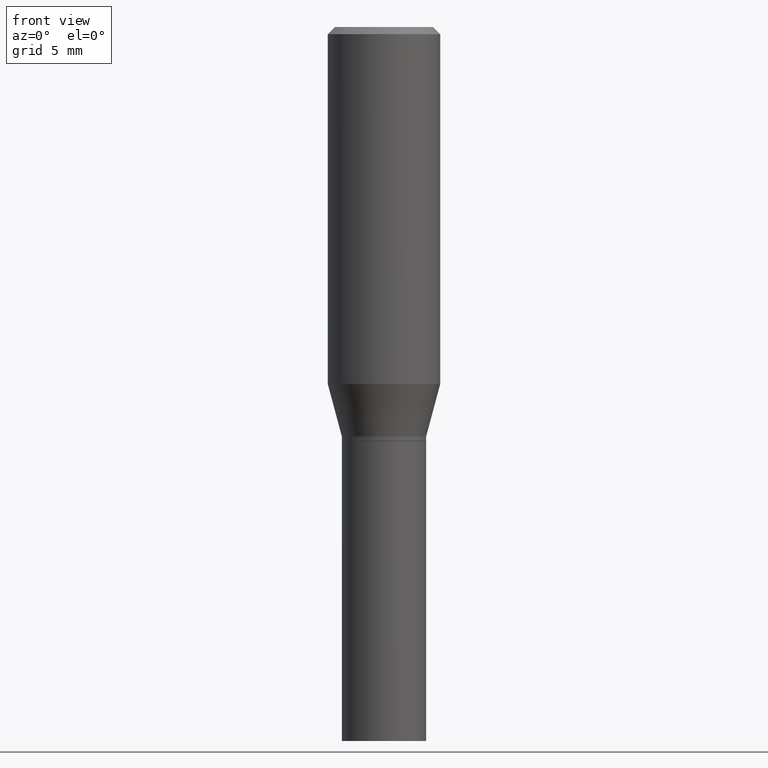
[diagram: clean part render]
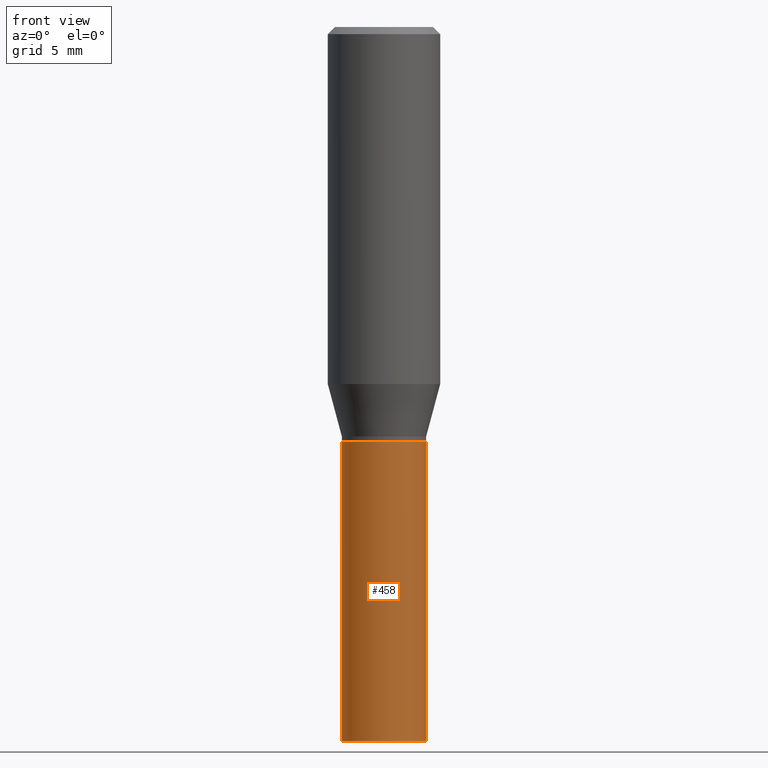
[diagram: same view with one face highlighted and labeled with its STEP entity id]
A machine part, front view. The second image highlights one B-rep face of the part: STEP entity #458.
In plain terms, the highlighted cylindrical surface (partial cylindrical patch) has radius 2.2504 mm, axis along (-0, 0, 1).
Its self-contained STEP definition (entity closure, byte-faithful):
#15 = DIRECTION ( 'NONE',  ( -2.445468806185136597E-29, 3.491481338843145583E-15, 1.000000000000000000 ) ) ;
#28 = VECTOR ( 'NONE', #153, 39.37007874015748143 ) ;
#52 = AXIS2_PLACEMENT_3D ( 'NONE', #312, #311, #309 ) ;
#66 = VERTEX_POINT ( 'NONE', #248 ) ;
#79 = EDGE_CURVE ( 'NONE', #443, #66, #82, .T. ) ;
#82 = CIRCLE ( 'NONE', #52, 0.08859999999999999820 ) ;
#118 = EDGE_CURVE ( 'NONE', #66, #209, #149, .T. ) ;
#124 = EDGE_LOOP ( 'NONE', ( #378, #295, #272, #235 ) ) ;
#139 = AXIS2_PLACEMENT_3D ( 'NONE', #441, #201, #234 ) ;
#149 = LINE ( 'NONE', #291, #173 ) ;
#153 = DIRECTION ( 'NONE',  ( -2.445468806185136877E-29, 3.491481338843145188E-15, 1.000000000000000000 ) ) ;
#155 = EDGE_CURVE ( 'NONE', #443, #407, #286, .T. ) ;
#160 = FACE_OUTER_BOUND ( 'NONE', #124, .T. ) ;
#165 = DIRECTION ( 'NONE',  ( 1.000000000000000000, -6.982962677686266711E-15, 4.876176775795935232E-29 ) ) ;
#173 = VECTOR ( 'NONE', #254, 39.37007874015748143 ) ;
#201 = DIRECTION ( 'NONE',  ( -2.445468806185136597E-29, 3.491481338843145583E-15, 1.000000000000000000 ) ) ;
#209 = VERTEX_POINT ( 'NONE', #355 ) ;
#218 = CARTESIAN_POINT ( 'NONE',  ( -0.08859999999999999820, 6.295408638834487519E-16, -4.358176489965846267E-30 ) ) ;
#234 = DIRECTION ( 'NONE',  ( 1.000000000000000000, -6.982962677686263555E-15, 0.000000000000000000 ) ) ;
#235 = ORIENTED_EDGE ( 'NONE', *, *, #425, .F. ) ;
#248 = CARTESIAN_POINT ( 'NONE',  ( 0.08859999999999999820, -5.855912501507721918E-15, -1.500000000000000222 ) ) ;
#254 = DIRECTION ( 'NONE',  ( -2.445468806185136877E-29, 3.491481338843145188E-15, 1.000000000000000000 ) ) ;
#255 = AXIS2_PLACEMENT_3D ( 'NONE', #334, #15, #165 ) ;
#272 = ORIENTED_EDGE ( 'NONE', *, *, #118, .T. ) ;
#286 = LINE ( 'NONE', #218, #28 ) ;
#291 = CARTESIAN_POINT ( 'NONE',  ( 0.08859999999999999820, -6.186904932430032487E-16, 4.320292623355198765E-30 ) ) ;
#295 = ORIENTED_EDGE ( 'NONE', *, *, #79, .T. ) ;
#298 = CYLINDRICAL_SURFACE ( 'NONE', #255, 0.08859999999999999820 ) ;
#309 = DIRECTION ( 'NONE',  ( 1.000000000000000000, -6.982962677686269077E-15, 0.000000000000000000 ) ) ;
#311 = DIRECTION ( 'NONE',  ( -2.445468806185136597E-29, 3.491481338843145583E-15, 1.000000000000000000 ) ) ;
#312 = CARTESIAN_POINT ( 'NONE',  ( 3.668203209277704895E-29, -5.237222008264718177E-15, -1.500000000000000222 ) ) ;
#334 = CARTESIAN_POINT ( 'NONE',  ( 0.000000000000000000, 0.000000000000000000, 0.000000000000000000 ) ) ;
#355 = CARTESIAN_POINT ( 'NONE',  ( 0.08859999999999999820, -3.656628406170424159E-15, -0.8701000000000000956 ) ) ;
#369 = CARTESIAN_POINT ( 'NONE',  ( -0.08859999999999999820, -3.508039096712621630E-15, -0.8701000000000000956 ) ) ;
#378 = ORIENTED_EDGE ( 'NONE', *, *, #155, .F. ) ;
#396 = CARTESIAN_POINT ( 'NONE',  ( -0.08859999999999999820, -3.508039096712621630E-15, -1.500000000000000222 ) ) ;
#407 = VERTEX_POINT ( 'NONE', #369 ) ;
#425 = EDGE_CURVE ( 'NONE', #407, #209, #452, .T. ) ;
#441 = CARTESIAN_POINT ( 'NONE',  ( 2.127802408261687534E-29, -3.037937912927421601E-15, -0.8701000000000000956 ) ) ;
#443 = VERTEX_POINT ( 'NONE', #396 ) ;
#452 = CIRCLE ( 'NONE', #139, 0.08859999999999999820 ) ;
#458 = ADVANCED_FACE ( 'NONE', ( #160 ), #298, .T. ) ;